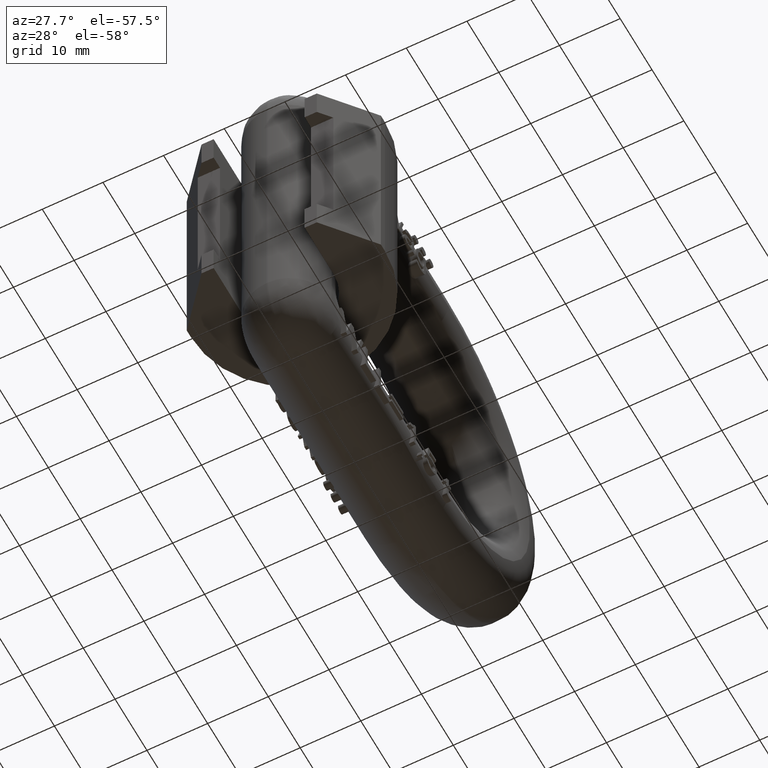
[diagram: clean part render]
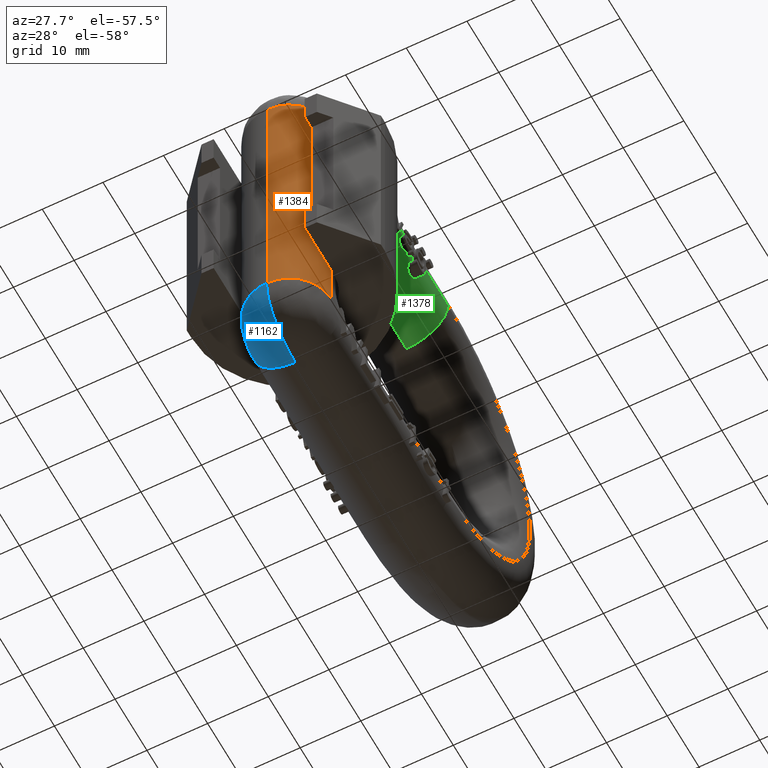
[diagram: same view with three faces highlighted in distinct colors, each labeled with its STEP entity id]
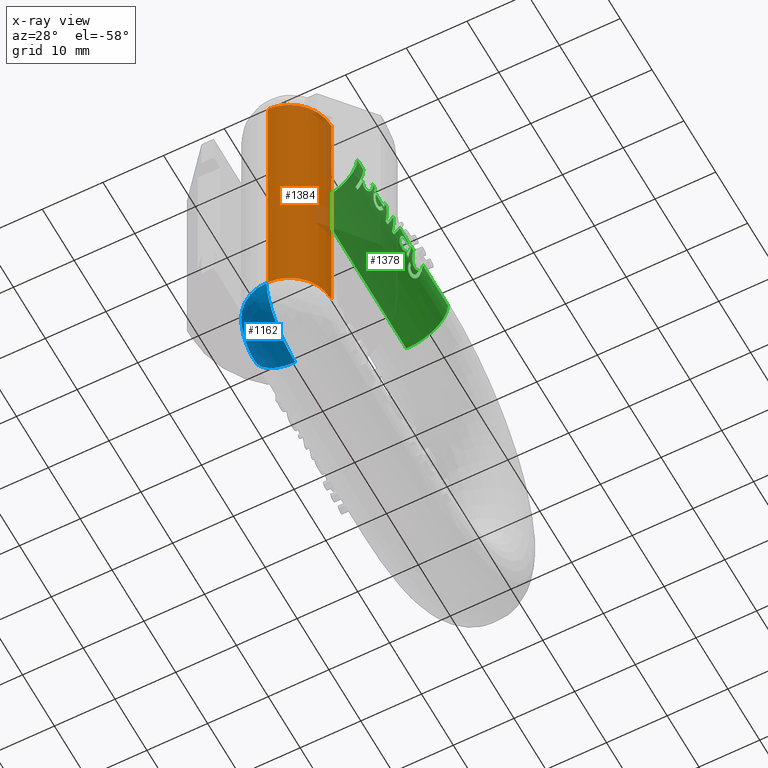
[diagram: x-ray of the same camera — body ghosted, the three highlighted faces saturated]
A machine part, auxiliary view with three faces highlighted in distinct colors.
The next image is the same camera in x-ray (body ghosted, the three faces saturated) — at least one of them is partly hidden behind the body in this view.
Their STEP definitions:

[orange] entity #1384 — the highlighted cylindrical surface (partial cylindrical patch) has radius 6.9 mm, axis along (-0, 0, 1).
#1100=CYLINDRICAL_SURFACE('',#9264,6.9);
#1384=ADVANCED_FACE('',(#2080),#1100,.T.);
#2080=FACE_OUTER_BOUND('',#2562,.T.);
#2562=EDGE_LOOP('',(#4511,#4512,#4513,#4514,#4515,#4516,#4517,#4518));
#2878=CIRCLE('',#9259,6.9);
#2881=CIRCLE('',#9263,6.9);
#4511=ORIENTED_EDGE('',*,*,#7261,.T.);
#4512=ORIENTED_EDGE('',*,*,#6449,.F.);
#4513=ORIENTED_EDGE('',*,*,#7264,.F.);
#4514=ORIENTED_EDGE('',*,*,#7085,.F.);
#4515=ORIENTED_EDGE('',*,*,#7265,.F.);
#4516=ORIENTED_EDGE('',*,*,#7266,.F.);
#4517=ORIENTED_EDGE('',*,*,#7267,.F.);
#4518=ORIENTED_EDGE('',*,*,#7256,.F.);
#5567=VERTEX_POINT('',#11285);
#5568=VERTEX_POINT('',#11287);
#5988=VERTEX_POINT('',#14901);
#5989=VERTEX_POINT('',#14903);
#6138=VERTEX_POINT('',#16093);
#6139=VERTEX_POINT('',#16094);
#6142=VERTEX_POINT('',#16125);
#6143=VERTEX_POINT('',#16127);
#6449=EDGE_CURVE('',#5567,#5568,#7741,.T.);
#7085=EDGE_CURVE('',#5988,#5989,#7987,.T.);
#7256=EDGE_CURVE('',#6138,#6139,#8031,.T.);
#7261=EDGE_CURVE('',#6138,#5568,#2878,.T.);
#7264=EDGE_CURVE('',#5989,#5567,#2881,.T.);
#7265=EDGE_CURVE('',#6142,#5988,#8033,.T.);
#7266=EDGE_CURVE('',#6143,#6142,#8034,.T.);
#7267=EDGE_CURVE('',#6139,#6143,#8035,.T.);
#7741=LINE('',#11286,#8279);
#7987=LINE('',#14902,#8603);
#8031=LINE('',#16092,#8647);
#8033=LINE('',#16124,#8649);
#8034=LINE('',#16126,#8650);
#8035=LINE('',#16128,#8651);
#8279=VECTOR('',#9544,1.);
#8603=VECTOR('',#10362,1.);
#8647=VECTOR('',#10532,1.);
#8649=VECTOR('',#10554,1.);
#8650=VECTOR('',#10555,1.);
#8651=VECTOR('',#10556,1.);
#9259=AXIS2_PLACEMENT_3D('',#16102,#10544,#10545);
#9263=AXIS2_PLACEMENT_3D('',#16123,#10552,#10553);
#9264=AXIS2_PLACEMENT_3D('',#16129,#10557,#10558);
#9544=DIRECTION('',(-2.34291072916505E-15,0.,1.));
#10362=DIRECTION('',(2.34291072916505E-15,0.,-1.));
#10532=DIRECTION('',(2.34291072916505E-15,0.,-1.));
#10544=DIRECTION('',(2.34291072916505E-15,0.,-1.));
#10545=DIRECTION('',(-1.,0.,-2.51409199416929E-15));
#10552=DIRECTION('',(2.34291072916505E-15,0.,-1.));
#10553=DIRECTION('',(-1.,0.,-2.51409199416929E-15));
#10554=DIRECTION('',(2.34291072916505E-15,0.,-1.));
#10555=DIRECTION('',(2.34291072916505E-15,0.,-1.));
#10556=DIRECTION('',(2.34291072916505E-15,0.,-1.));
#10557=DIRECTION('',(-2.34291072916505E-15,0.,1.));
#10558=DIRECTION('',(1.,0.,2.51409199416929E-15));
#11285=CARTESIAN_POINT('',(0.100000000000054,2.5,-23.5));
#11286=CARTESIAN_POINT('',(0.0999999999999443,2.5,23.5));
#11287=CARTESIAN_POINT('',(0.0999999999999443,2.5,23.5));
#14901=CARTESIAN_POINT('',(7.00000000000005,9.4,-19.7248595461287));
#14902=CARTESIAN_POINT('',(7.00000000000006,9.4,-23.5));
#14903=CARTESIAN_POINT('',(7.00000000000006,9.4,-23.5));
#16092=CARTESIAN_POINT('',(7.00000000000006,9.4,-23.5));
#16093=CARTESIAN_POINT('',(6.99999999999995,9.4,23.5));
#16094=CARTESIAN_POINT('',(6.99999999999995,9.4,19.7248595461288));
#16102=CARTESIAN_POINT('',(0.0999999999999443,9.4,23.5));
#16123=CARTESIAN_POINT('',(0.100000000000054,9.4,-23.5));
#16124=CARTESIAN_POINT('',(7.00000000000006,9.4,-23.5));
#16125=CARTESIAN_POINT('',(7.00000000000004,9.4,-17.5));
#16126=CARTESIAN_POINT('',(7.00000000000006,9.4,-23.5));
#16127=CARTESIAN_POINT('',(6.99999999999996,9.4,17.5000000000001));
#16128=CARTESIAN_POINT('',(7.00000000000006,9.4,-23.5));
#16129=CARTESIAN_POINT('',(0.100000000000054,9.4,-23.5));

[blue] entity #1162 — the highlighted face is a freeform B-spline surface patch.
#236=(
BOUNDED_SURFACE()
B_SPLINE_SURFACE(3,3,((#12602,#12603,#12604,#12605),(#12606,#12607,#12608,
#12609),(#12610,#12611,#12612,#12613),(#12614,#12615,#12616,#12617)),
 .UNSPECIFIED.,.F.,.F.,.F.)
B_SPLINE_SURFACE_WITH_KNOTS((4,4),(4,4),(0.,1.),(0.,1.),.UNSPECIFIED.)
GEOMETRIC_REPRESENTATION_ITEM()
RATIONAL_B_SPLINE_SURFACE(((1.,0.804737854124365,0.804737854124365,1.),
(0.804737854124365,0.647603013860688,0.647603013860688,0.804737854124365),
(0.804737854124365,0.647603013860688,0.647603013860688,0.804737854124365),
(1.,0.804737854124365,0.804737854124365,1.)))
REPRESENTATION_ITEM('')
SURFACE()
);
#1162=ADVANCED_FACE('',(#1868),#236,.T.);
#1868=FACE_OUTER_BOUND('',#2327,.T.);
#2327=EDGE_LOOP('',(#3280,#3281,#3282,#3283));
#2785=CIRCLE('',#8954,9.);
#2811=CIRCLE('',#9003,6.9);
#2817=CIRCLE('',#9028,2.1);
#2819=CIRCLE('',#9032,6.9);
#3280=ORIENTED_EDGE('',*,*,#6589,.T.);
#3281=ORIENTED_EDGE('',*,*,#6465,.F.);
#3282=ORIENTED_EDGE('',*,*,#6658,.F.);
#3283=ORIENTED_EDGE('',*,*,#6655,.F.);
#5566=VERTEX_POINT('',#11284);
#5577=VERTEX_POINT('',#11313);
#5690=VERTEX_POINT('',#11998);
#5742=VERTEX_POINT('',#12592);
#6465=EDGE_CURVE('',#5566,#5577,#2785,.T.);
#6589=EDGE_CURVE('',#5690,#5577,#2811,.T.);
#6655=EDGE_CURVE('',#5690,#5742,#2817,.T.);
#6658=EDGE_CURVE('',#5742,#5566,#2819,.T.);
#8954=AXIS2_PLACEMENT_3D('',#11317,#9575,#9576);
#9003=AXIS2_PLACEMENT_3D('',#11997,#9710,#9711);
#9028=AXIS2_PLACEMENT_3D('',#12595,#9771,#9772);
#9032=AXIS2_PLACEMENT_3D('',#12601,#9780,#9781);
#9575=DIRECTION('',(1.,0.,0.));
#9576=DIRECTION('',(0.,0.,1.));
#9710=DIRECTION('',(0.,-1.,5.02818398833857E-16));
#9711=DIRECTION('',(0.,-5.02818398833857E-16,-1.));
#9771=DIRECTION('',(-1.,0.,0.));
#9772=DIRECTION('',(0.,0.,1.));
#9780=DIRECTION('',(0.,0.,1.));
#9781=DIRECTION('',(1.,0.,0.));
#11284=CARTESIAN_POINT('',(-0.0999999999999994,2.5,-23.5));
#11313=CARTESIAN_POINT('',(-0.0999999999999994,11.5,-32.5));
#11317=CARTESIAN_POINT('',(-0.0999999999999994,11.5,-23.5));
#11997=CARTESIAN_POINT('',(-0.0999999999999994,11.5,-25.6));
#11998=CARTESIAN_POINT('',(-7.,11.5,-25.6));
#12592=CARTESIAN_POINT('',(-7.,9.4,-23.5));
#12595=CARTESIAN_POINT('',(-7.,11.5,-23.5));
#12601=CARTESIAN_POINT('',(-0.0999999999999994,9.4,-23.5));
#12602=CARTESIAN_POINT('',(-7.,11.5,-25.6));
#12603=CARTESIAN_POINT('',(-7.,10.2698484809835,-25.6));
#12604=CARTESIAN_POINT('',(-7.,9.4,-24.7301515190165));
#12605=CARTESIAN_POINT('',(-7.,9.4,-23.5));
#12606=CARTESIAN_POINT('',(-7.,11.5,-29.6419264196256));
#12607=CARTESIAN_POINT('',(-7.,7.90214280248093,-29.6419264196256));
#12608=CARTESIAN_POINT('',(-7.,5.35807358037436,-27.0978571975191));
#12609=CARTESIAN_POINT('',(-7.,5.35807358037436,-23.5));
#12610=CARTESIAN_POINT('',(-4.14192641962564,11.5,-32.5));
#12611=CARTESIAN_POINT('',(-4.14192641962564,6.22792206135786,-32.5));
#12612=CARTESIAN_POINT('',(-4.14192641962564,2.5,-28.7720779386421));
#12613=CARTESIAN_POINT('',(-4.14192641962564,2.5,-23.5));
#12614=CARTESIAN_POINT('',(-0.0999999999999985,11.5,-32.5));
#12615=CARTESIAN_POINT('',(-0.0999999999999985,6.22792206135786,-32.5));
#12616=CARTESIAN_POINT('',(-0.0999999999999985,2.5,-28.7720779386421));
#12617=CARTESIAN_POINT('',(-0.0999999999999985,2.5,-23.5));

[green] entity #1378 — the highlighted cylindrical surface (partial cylindrical patch) has radius 6.9 mm, axis along (0, -1, 0).
#299=ELLIPSE('',#9241,48.0158456161202,6.9);
#300=ELLIPSE('',#9242,51.9098161027808,6.9);
#301=ELLIPSE('',#9243,7.24041539934658,6.9);
#302=ELLIPSE('',#9244,7.14703583906104,6.9);
#303=ELLIPSE('',#9245,7.083587877245,6.9);
#304=ELLIPSE('',#9246,7.14294426054788,6.9);
#305=ELLIPSE('',#9247,7.22701863492407,6.9);
#306=ELLIPSE('',#9248,57.5025199382336,6.9);
#730=B_SPLINE_CURVE_WITH_KNOTS('',3,(#15695,#15696,#15697,#15698,#15699,
#15700,#15701,#15702),.UNSPECIFIED.,.F.,.F.,(4,2,2,4),(0.,0.25,0.5,1.),
 .UNSPECIFIED.);
#731=B_SPLINE_CURVE_WITH_KNOTS('',3,(#15704,#15705,#15706,#15707,#15708,
#15709,#15710,#15711,#15712,#15713,#15714,#15715,#15716),.UNSPECIFIED.,
 .F.,.F.,(4,3,3,3,4),(0.,0.240774955562717,0.479091554389667,0.754813420386059,
1.),.UNSPECIFIED.);
#732=B_SPLINE_CURVE_WITH_KNOTS('',3,(#15718,#15719,#15720,#15721,#15722,
#15723,#15724,#15725,#15726,#15727),.UNSPECIFIED.,.F.,.F.,(4,3,3,4),(0.,
0.414423396238002,0.649284728910077,1.),.UNSPECIFIED.);
#733=B_SPLINE_CURVE_WITH_KNOTS('',3,(#15731,#15732,#15733,#15734,#15735,
#15736,#15737,#15738,#15739,#15740),.UNSPECIFIED.,.F.,.F.,(4,3,3,4),(0.,
0.265655216412921,0.672024980526456,1.),.UNSPECIFIED.);
#734=B_SPLINE_CURVE_WITH_KNOTS('',3,(#15742,#15743,#15744,#15745,#15746,
#15747,#15748,#15749,#15750,#15751,#15752,#15753,#15754,#15755,#15756,#15757,
#15758,#15759,#15760),.UNSPECIFIED.,.F.,.F.,(4,3,3,3,3,3,4),(0.,0.204909507472804,
0.339278695809496,0.474389882199316,0.67848433073375,0.856270146803093,
1.),.UNSPECIFIED.);
#735=B_SPLINE_CURVE_WITH_KNOTS('',3,(#15762,#15763,#15764,#15765,#15766,
#15767,#15768,#15769,#15770,#15771),.UNSPECIFIED.,.F.,.F.,(4,3,3,4),(0.,
0.350423326157689,0.673957232872881,1.),.UNSPECIFIED.);
#736=B_SPLINE_CURVE_WITH_KNOTS('',3,(#15773,#15774,#15775,#15776,#15777,
#15778,#15779,#15780,#15781,#15782,#15783,#15784,#15785,#15786,#15787,#15788,
#15789,#15790,#15791,#15792,#15793,#15794,#15795,#15796,#15797,#15798,#15799,
#15800),.UNSPECIFIED.,.F.,.F.,(4,3,3,3,3,3,3,3,3,4),(0.,0.161555110936716,
0.326591081419419,0.4900290578059,0.585040143930218,0.680259675914433,0.774914289945667,
0.860988711071179,0.946998001945225,1.),.UNSPECIFIED.);
#737=B_SPLINE_CURVE_WITH_KNOTS('',3,(#15801,#15802,#15803,#15804,#15805,
#15806,#15807,#15808,#15809,#15810),.UNSPECIFIED.,.F.,.F.,(4,3,3,4),(0.,
0.380802208752944,0.689054274983316,1.),.UNSPECIFIED.);
#738=B_SPLINE_CURVE_WITH_KNOTS('',3,(#15812,#15813,#15814,#15815,#15816,
#15817,#15818,#15819,#15820,#15821),.UNSPECIFIED.,.F.,.F.,(4,3,3,4),(0.,
0.493933314909422,0.746039258606024,1.),.UNSPECIFIED.);
#739=B_SPLINE_CURVE_WITH_KNOTS('',3,(#15825,#15826,#15827,#15828,#15829,
#15830,#15831,#15832,#15833,#15834),.UNSPECIFIED.,.F.,.F.,(4,3,3,4),(0.,
0.493370917964008,0.745461342687032,1.),.UNSPECIFIED.);
#740=B_SPLINE_CURVE_WITH_KNOTS('',3,(#15836,#15837,#15838,#15839,#15840,
#15841,#15842,#15843,#15844,#15845),.UNSPECIFIED.,.F.,.F.,(4,3,3,4),(0.,
0.282583026587274,0.564671553526576,1.),.UNSPECIFIED.);
#741=B_SPLINE_CURVE_WITH_KNOTS('',3,(#15847,#15848,#15849,#15850,#15851,
#15852,#15853,#15854,#15855,#15856,#15857,#15858,#15859,#15860,#15861,#15862,
#15863,#15864,#15865,#15866,#15867,#15868,#15869,#15870,#15871),
 .UNSPECIFIED.,.F.,.F.,(4,3,3,3,3,3,3,3,4),(0.,0.109334912724332,0.217830452497315,
0.344744115261238,0.457062185518118,0.572257754798187,0.721654213663782,
0.937888591037231,1.),.UNSPECIFIED.);
#742=B_SPLINE_CURVE_WITH_KNOTS('',3,(#15873,#15874,#15875,#15876,#15877,
#15878,#15879,#15880,#15881,#15882),.UNSPECIFIED.,.F.,.F.,(4,3,3,4),(0.,
0.259528139793296,0.519063539176799,1.),.UNSPECIFIED.);
#743=B_SPLINE_CURVE_WITH_KNOTS('',3,(#15884,#15885,#15886,#15887,#15888,
#15889,#15890,#15891,#15892,#15893),.UNSPECIFIED.,.F.,.F.,(4,3,3,4),(0.,
0.26165614086771,0.523384175272638,1.),.UNSPECIFIED.);
#744=B_SPLINE_CURVE_WITH_KNOTS('',3,(#15895,#15896,#15897,#15898,#15899,
#15900,#15901,#15902,#15903,#15904),.UNSPECIFIED.,.F.,.F.,(4,3,3,4),(0.,
0.331270383050767,0.665203033046446,1.),.UNSPECIFIED.);
#745=B_SPLINE_CURVE_WITH_KNOTS('',3,(#15906,#15907,#15908,#15909,#15910,
#15911,#15912,#15913,#15914,#15915),.UNSPECIFIED.,.F.,.F.,(4,3,3,4),(0.,
0.336070513602499,0.667700301170696,1.),.UNSPECIFIED.);
#746=B_SPLINE_CURVE_WITH_KNOTS('',3,(#15917,#15918,#15919,#15920,#15921,
#15922,#15923),.UNSPECIFIED.,.F.,.F.,(4,3,4),(0.,0.498341515942701,1.),
 .UNSPECIFIED.);
#747=B_SPLINE_CURVE_WITH_KNOTS('',3,(#15924,#15925,#15926,#15927),
 .UNSPECIFIED.,.F.,.F.,(4,4),(0.,1.),.UNSPECIFIED.);
#748=B_SPLINE_CURVE_WITH_KNOTS('',3,(#15931,#15932,#15933,#15934),
 .UNSPECIFIED.,.F.,.F.,(4,4),(0.,1.),.UNSPECIFIED.);
#749=B_SPLINE_CURVE_WITH_KNOTS('',3,(#15950,#15951,#15952,#15953,#15954,
#15955,#15956),.UNSPECIFIED.,.F.,.F.,(4,3,4),(0.,0.814441252914079,1.),
 .UNSPECIFIED.);
#750=B_SPLINE_CURVE_WITH_KNOTS('',3,(#15960,#15961,#15962,#15963,#15964,
#15965,#15966,#15967,#15968,#15969),.UNSPECIFIED.,.F.,.F.,(4,3,3,4),(0.,
0.295914027655166,0.754996035532998,1.),.UNSPECIFIED.);
#751=B_SPLINE_CURVE_WITH_KNOTS('',3,(#15971,#15972,#15973,#15974,#15975,
#15976,#15977,#15978,#15979,#15980,#15981,#15982,#15983,#15984,#15985,#15986),
 .UNSPECIFIED.,.F.,.F.,(4,3,3,3,3,4),(0.,0.208494010149192,0.415658259112178,
0.651012517605988,0.899385049135537,1.),.UNSPECIFIED.);
#752=B_SPLINE_CURVE_WITH_KNOTS('',3,(#15988,#15989,#15990,#15991,#15992,
#15993,#15994,#15995,#15996,#15997),.UNSPECIFIED.,.F.,.F.,(4,3,3,4),(0.,
0.290391091340212,0.581357320391747,1.),.UNSPECIFIED.);
#753=B_SPLINE_CURVE_WITH_KNOTS('',3,(#16001,#16002,#16003,#16004,#16005,
#16006,#16007,#16008,#16009,#16010),.UNSPECIFIED.,.F.,.F.,(4,3,3,4),(0.,
0.265914615217037,0.758350119690938,1.),.UNSPECIFIED.);
#754=B_SPLINE_CURVE_WITH_KNOTS('',3,(#16012,#16013,#16014,#16015,#16016,
#16017,#16018,#16019,#16020,#16021,#16022,#16023,#16024,#16025,#16026,#16027),
 .UNSPECIFIED.,.F.,.F.,(4,3,3,3,3,4),(0.,0.207142719932074,0.414106459647106,
0.701317802841796,0.902711883125082,1.),.UNSPECIFIED.);
#755=B_SPLINE_CURVE_WITH_KNOTS('',3,(#16029,#16030,#16031,#16032,#16033,
#16034,#16035,#16036,#16037,#16038,#16039,#16040,#16041),.UNSPECIFIED.,
 .F.,.F.,(4,3,3,3,4),(0.,0.327583363499489,0.659416952884934,0.903455095412193,
1.),.UNSPECIFIED.);
#756=B_SPLINE_CURVE_WITH_KNOTS('',3,(#16042,#16043,#16044,#16045,#16046,
#16047,#16048,#16049,#16050,#16051,#16052,#16053,#16054,#16055,#16056,#16057),
 .UNSPECIFIED.,.F.,.F.,(4,3,3,3,3,4),(0.,0.19221115347812,0.3829273968302,
0.666963421150527,0.956716028113853,1.),.UNSPECIFIED.);
#757=B_SPLINE_CURVE_WITH_KNOTS('',3,(#16059,#16060,#16061,#16062,#16063,
#16064,#16065,#16066,#16067,#16068,#16069,#16070,#16071),.UNSPECIFIED.,
 .F.,.F.,(4,3,3,3,4),(0.,0.268648668352517,0.534872777494387,0.839503930025229,
1.),.UNSPECIFIED.);
#758=B_SPLINE_CURVE_WITH_KNOTS('',3,(#16073,#16074,#16075,#16076,#16077,
#16078,#16079,#16080,#16081,#16082),.UNSPECIFIED.,.F.,.F.,(4,3,3,4),(0.,
0.258655182620961,0.517282552273824,1.),.UNSPECIFIED.);
#1098=CYLINDRICAL_SURFACE('',#9250,6.9);
#1378=ADVANCED_FACE('',(#2074),#1098,.T.);
#2074=FACE_OUTER_BOUND('',#2556,.T.);
#2556=EDGE_LOOP('',(#4437,#4438,#4439,#4440,#4441,#4442,#4443,#4444,#4445,
#4446,#4447,#4448,#4449,#4450,#4451,#4452,#4453,#4454,#4455,#4456,#4457,
#4458,#4459,#4460,#4461,#4462,#4463,#4464,#4465,#4466,#4467,#4468,#4469,
#4470,#4471,#4472,#4473,#4474,#4475,#4476,#4477,#4478,#4479,#4480,#4481,
#4482,#4483,#4484,#4485,#4486,#4487,#4488,#4489,#4490,#4491));
#2871=CIRCLE('',#9238,6.9);
#2872=CIRCLE('',#9239,6.9);
#2873=CIRCLE('',#9240,6.9);
#2874=CIRCLE('',#9249,6.9);
#4437=ORIENTED_EDGE('',*,*,#7207,.F.);
#4438=ORIENTED_EDGE('',*,*,#7195,.F.);
#4439=ORIENTED_EDGE('',*,*,#7208,.F.);
#4440=ORIENTED_EDGE('',*,*,#6445,.F.);
#4441=ORIENTED_EDGE('',*,*,#7209,.T.);
#4442=ORIENTED_EDGE('',*,*,#7190,.F.);
#4443=ORIENTED_EDGE('',*,*,#7210,.F.);
#4444=ORIENTED_EDGE('',*,*,#7211,.F.);
#4445=ORIENTED_EDGE('',*,*,#7212,.F.);
#4446=ORIENTED_EDGE('',*,*,#7213,.F.);
#4447=ORIENTED_EDGE('',*,*,#7214,.F.);
#4448=ORIENTED_EDGE('',*,*,#7215,.F.);
#4449=ORIENTED_EDGE('',*,*,#7216,.F.);
#4450=ORIENTED_EDGE('',*,*,#7217,.F.);
#4451=ORIENTED_EDGE('',*,*,#7184,.F.);
#4452=ORIENTED_EDGE('',*,*,#7218,.F.);
#4453=ORIENTED_EDGE('',*,*,#7219,.F.);
#4454=ORIENTED_EDGE('',*,*,#7220,.F.);
#4455=ORIENTED_EDGE('',*,*,#7221,.F.);
#4456=ORIENTED_EDGE('',*,*,#7222,.F.);
#4457=ORIENTED_EDGE('',*,*,#7223,.F.);
#4458=ORIENTED_EDGE('',*,*,#7224,.F.);
#4459=ORIENTED_EDGE('',*,*,#7225,.F.);
#4460=ORIENTED_EDGE('',*,*,#7226,.F.);
#4461=ORIENTED_EDGE('',*,*,#7227,.F.);
#4462=ORIENTED_EDGE('',*,*,#7228,.F.);
#4463=ORIENTED_EDGE('',*,*,#7206,.F.);
#4464=ORIENTED_EDGE('',*,*,#7229,.F.);
#4465=ORIENTED_EDGE('',*,*,#7230,.F.);
#4466=ORIENTED_EDGE('',*,*,#7231,.F.);
#4467=ORIENTED_EDGE('',*,*,#7177,.F.);
#4468=ORIENTED_EDGE('',*,*,#7232,.F.);
#4469=ORIENTED_EDGE('',*,*,#7233,.F.);
#4470=ORIENTED_EDGE('',*,*,#7234,.F.);
#4471=ORIENTED_EDGE('',*,*,#7235,.F.);
#4472=ORIENTED_EDGE('',*,*,#7236,.F.);
#4473=ORIENTED_EDGE('',*,*,#7237,.F.);
#4474=ORIENTED_EDGE('',*,*,#7238,.F.);
#4475=ORIENTED_EDGE('',*,*,#7239,.F.);
#4476=ORIENTED_EDGE('',*,*,#7165,.F.);
#4477=ORIENTED_EDGE('',*,*,#7240,.F.);
#4478=ORIENTED_EDGE('',*,*,#7241,.F.);
#4479=ORIENTED_EDGE('',*,*,#7242,.F.);
#4480=ORIENTED_EDGE('',*,*,#7243,.F.);
#4481=ORIENTED_EDGE('',*,*,#7244,.F.);
#4482=ORIENTED_EDGE('',*,*,#7245,.F.);
#4483=ORIENTED_EDGE('',*,*,#7246,.F.);
#4484=ORIENTED_EDGE('',*,*,#7247,.F.);
#4485=ORIENTED_EDGE('',*,*,#7248,.F.);
#4486=ORIENTED_EDGE('',*,*,#7163,.F.);
#4487=ORIENTED_EDGE('',*,*,#7249,.F.);
#4488=ORIENTED_EDGE('',*,*,#7250,.F.);
#4489=ORIENTED_EDGE('',*,*,#7251,.F.);
#4490=ORIENTED_EDGE('',*,*,#7252,.F.);
#4491=ORIENTED_EDGE('',*,*,#7253,.F.);
#5562=VERTEX_POINT('',#11272);
#5564=VERTEX_POINT('',#11278);
#6052=VERTEX_POINT('',#15301);
#6057=VERTEX_POINT('',#15338);
#6058=VERTEX_POINT('',#15340);
#6059=VERTEX_POINT('',#15366);
#6060=VERTEX_POINT('',#15368);
#6071=VERTEX_POINT('',#15396);
#6072=VERTEX_POINT('',#15398);
#6078=VERTEX_POINT('',#15458);
#6079=VERTEX_POINT('',#15460);
#6084=VERTEX_POINT('',#15494);
#6085=VERTEX_POINT('',#15496);
#6088=VERTEX_POINT('',#15503);
#6096=VERTEX_POINT('',#15668);
#6097=VERTEX_POINT('',#15688);
#6098=VERTEX_POINT('',#15692);
#6099=VERTEX_POINT('',#15703);
#6100=VERTEX_POINT('',#15717);
#6101=VERTEX_POINT('',#15728);
#6102=VERTEX_POINT('',#15730);
#6103=VERTEX_POINT('',#15741);
#6104=VERTEX_POINT('',#15761);
#6105=VERTEX_POINT('',#15772);
#6106=VERTEX_POINT('',#15811);
#6107=VERTEX_POINT('',#15822);
#6108=VERTEX_POINT('',#15824);
#6109=VERTEX_POINT('',#15835);
#6110=VERTEX_POINT('',#15846);
#6111=VERTEX_POINT('',#15872);
#6112=VERTEX_POINT('',#15883);
#6113=VERTEX_POINT('',#15894);
#6114=VERTEX_POINT('',#15905);
#6115=VERTEX_POINT('',#15916);
#6116=VERTEX_POINT('',#15928);
#6117=VERTEX_POINT('',#15930);
#6118=VERTEX_POINT('',#15936);
#6119=VERTEX_POINT('',#15938);
#6120=VERTEX_POINT('',#15940);
#6121=VERTEX_POINT('',#15942);
#6122=VERTEX_POINT('',#15944);
#6123=VERTEX_POINT('',#15946);
#6124=VERTEX_POINT('',#15948);
#6125=VERTEX_POINT('',#15957);
#6126=VERTEX_POINT('',#15959);
#6127=VERTEX_POINT('',#15970);
#6128=VERTEX_POINT('',#15987);
#6129=VERTEX_POINT('',#15998);
#6130=VERTEX_POINT('',#16000);
#6131=VERTEX_POINT('',#16011);
#6132=VERTEX_POINT('',#16028);
#6133=VERTEX_POINT('',#16058);
#6134=VERTEX_POINT('',#16072);
#6135=VERTEX_POINT('',#16083);
#6136=VERTEX_POINT('',#16085);
#6445=EDGE_CURVE('',#5562,#5564,#7737,.T.);
#7163=EDGE_CURVE('',#6057,#6058,#8010,.T.);
#7165=EDGE_CURVE('',#6059,#6060,#8011,.T.);
#7177=EDGE_CURVE('',#6071,#6072,#8017,.T.);
#7184=EDGE_CURVE('',#6078,#6079,#8018,.T.);
#7190=EDGE_CURVE('',#6084,#6085,#8020,.T.);
#7195=EDGE_CURVE('',#6088,#6052,#8023,.T.);
#7206=EDGE_CURVE('',#6097,#6096,#8024,.T.);
#7207=EDGE_CURVE('',#6052,#6098,#2871,.T.);
#7208=EDGE_CURVE('',#5564,#6088,#2872,.T.);
#7209=EDGE_CURVE('',#5562,#6085,#2873,.T.);
#7210=EDGE_CURVE('',#6099,#6084,#730,.T.);
#7211=EDGE_CURVE('',#6100,#6099,#731,.T.);
#7212=EDGE_CURVE('',#6101,#6100,#732,.T.);
#7213=EDGE_CURVE('',#6102,#6101,#299,.T.);
#7214=EDGE_CURVE('',#6103,#6102,#733,.T.);
#7215=EDGE_CURVE('',#6104,#6103,#734,.T.);
#7216=EDGE_CURVE('',#6105,#6104,#735,.T.);
#7217=EDGE_CURVE('',#6079,#6105,#736,.T.);
#7218=EDGE_CURVE('',#6106,#6078,#737,.T.);
#7219=EDGE_CURVE('',#6107,#6106,#738,.T.);
#7220=EDGE_CURVE('',#6108,#6107,#8025,.T.);
#7221=EDGE_CURVE('',#6109,#6108,#739,.T.);
#7222=EDGE_CURVE('',#6110,#6109,#740,.T.);
#7223=EDGE_CURVE('',#6111,#6110,#741,.T.);
#7224=EDGE_CURVE('',#6112,#6111,#742,.T.);
#7225=EDGE_CURVE('',#6113,#6112,#743,.T.);
#7226=EDGE_CURVE('',#6114,#6113,#744,.T.);
#7227=EDGE_CURVE('',#6115,#6114,#745,.T.);
#7228=EDGE_CURVE('',#6096,#6115,#746,.T.);
#7229=EDGE_CURVE('',#6116,#6097,#747,.T.);
#7230=EDGE_CURVE('',#6117,#6116,#300,.T.);
#7231=EDGE_CURVE('',#6072,#6117,#748,.T.);
#7232=EDGE_CURVE('',#6118,#6071,#301,.T.);
#7233=EDGE_CURVE('',#6119,#6118,#8026,.T.);
#7234=EDGE_CURVE('',#6120,#6119,#302,.T.);
#7235=EDGE_CURVE('',#6121,#6120,#303,.T.);
#7236=EDGE_CURVE('',#6122,#6121,#8027,.T.);
#7237=EDGE_CURVE('',#6123,#6122,#304,.T.);
#7238=EDGE_CURVE('',#6124,#6123,#8028,.T.);
#7239=EDGE_CURVE('',#6060,#6124,#305,.T.);
#7240=EDGE_CURVE('',#6125,#6059,#749,.T.);
#7241=EDGE_CURVE('',#6126,#6125,#8029,.T.);
#7242=EDGE_CURVE('',#6127,#6126,#750,.T.);
#7243=EDGE_CURVE('',#6128,#6127,#751,.T.);
#7244=EDGE_CURVE('',#6129,#6128,#752,.T.);
#7245=EDGE_CURVE('',#6130,#6129,#306,.T.);
#7246=EDGE_CURVE('',#6131,#6130,#753,.T.);
#7247=EDGE_CURVE('',#6132,#6131,#754,.T.);
#7248=EDGE_CURVE('',#6058,#6132,#755,.T.);
#7249=EDGE_CURVE('',#6133,#6057,#756,.T.);
#7250=EDGE_CURVE('',#6134,#6133,#757,.T.);
#7251=EDGE_CURVE('',#6135,#6134,#758,.T.);
#7252=EDGE_CURVE('',#6136,#6135,#2874,.T.);
#7253=EDGE_CURVE('',#6098,#6136,#8030,.T.);
#7737=LINE('',#11277,#8275);
#8010=LINE('',#15339,#8626);
#8011=LINE('',#15367,#8627);
#8017=LINE('',#15397,#8633);
#8018=LINE('',#15459,#8634);
#8020=LINE('',#15495,#8636);
#8023=LINE('',#15504,#8639);
#8024=LINE('',#15689,#8640);
#8025=LINE('',#15823,#8641);
#8026=LINE('',#15937,#8642);
#8027=LINE('',#15943,#8643);
#8028=LINE('',#15947,#8644);
#8029=LINE('',#15958,#8645);
#8030=LINE('',#16086,#8646);
#8275=VECTOR('',#9538,1.);
#8626=VECTOR('',#10451,1.);
#8627=VECTOR('',#10452,1.);
#8633=VECTOR('',#10466,1.);
#8634=VECTOR('',#10467,1.);
#8636=VECTOR('',#10471,1.);
#8639=VECTOR('',#10478,1.);
#8640=VECTOR('',#10491,1.);
#8641=VECTOR('',#10502,1.);
#8642=VECTOR('',#10507,1.);
#8643=VECTOR('',#10512,1.);
#8644=VECTOR('',#10515,1.);
#8645=VECTOR('',#10518,1.);
#8646=VECTOR('',#10523,1.);
#9238=AXIS2_PLACEMENT_3D('',#15691,#10494,#10495);
#9239=AXIS2_PLACEMENT_3D('',#15693,#10496,#10497);
#9240=AXIS2_PLACEMENT_3D('',#15694,#10498,#10499);
#9241=AXIS2_PLACEMENT_3D('',#15729,#10500,#10501);
#9242=AXIS2_PLACEMENT_3D('',#15929,#10503,#10504);
#9243=AXIS2_PLACEMENT_3D('',#15935,#10505,#10506);
#9244=AXIS2_PLACEMENT_3D('',#15939,#10508,#10509);
#9245=AXIS2_PLACEMENT_3D('',#15941,#10510,#10511);
#9246=AXIS2_PLACEMENT_3D('',#15945,#10513,#10514);
#9247=AXIS2_PLACEMENT_3D('',#15949,#10516,#10517);
#9248=AXIS2_PLACEMENT_3D('',#15999,#10519,#10520);
#9249=AXIS2_PLACEMENT_3D('',#16084,#10521,#10522);
#9250=AXIS2_PLACEMENT_3D('',#16087,#10524,#10525);
#9538=DIRECTION('',(0.,-1.,0.));
#10451=DIRECTION('',(0.,1.,0.));
#10452=DIRECTION('',(0.,1.,0.));
#10466=DIRECTION('',(0.,1.,0.));
#10467=DIRECTION('',(0.,1.,0.));
#10471=DIRECTION('',(0.,1.,0.));
#10478=DIRECTION('',(0.,1.,0.));
#10491=DIRECTION('',(0.,1.,0.));
#10494=DIRECTION('',(0.,1.,0.));
#10495=DIRECTION('',(-2.34321230394059E-15,0.,1.));
#10496=DIRECTION('',(2.51647163691136E-15,-1.,5.89586839775915E-30));
#10497=DIRECTION('',(-1.,-2.51409199416929E-15,-2.51409199416929E-15));
#10498=DIRECTION('',(0.,-1.,0.));
#10499=DIRECTION('',(-2.34321230394059E-15,0.,1.));
#10500=DIRECTION('',(2.31859348140978E-15,-0.143702561341198,-0.989620924326067));
#10501=DIRECTION('',(-3.36682272774791E-16,-0.989620924326067,0.143702561341198));
#10502=DIRECTION('',(0.,1.,0.));
#10503=DIRECTION('',(-2.32212065140543E-15,0.132922836527452,0.991126389281153));
#10504=DIRECTION('',(-3.11426339851218E-16,-0.991126389281153,0.132922836527452));
#10505=DIRECTION('',(-7.09950289647319E-16,-0.952983996004248,0.303020631904454));
#10506=DIRECTION('',(2.23275642896094E-15,-0.303020631904454,-0.952983996004248));
#10507=DIRECTION('',(0.,1.,0.));
#10508=DIRECTION('',(-6.10663705076032E-16,0.96543520354118,0.260643180926341));
#10509=DIRECTION('',(-2.26192849669027E-15,-0.260643180926341,0.96543520354118));
#10510=DIRECTION('',(-5.29948617235897E-16,0.974082642803832,0.226192407008506));
#10511=DIRECTION('',(-2.28218867491854E-15,-0.226192407008506,0.974082642803832));
#10512=DIRECTION('',(0.,1.,0.));
#10513=DIRECTION('',(-6.05844106883227E-16,-0.9659882183472,0.25858608240662));
#10514=DIRECTION('',(2.26322416101268E-15,-0.25858608240662,-0.9659882183472));
#10515=DIRECTION('',(0.,1.,0.));
#10516=DIRECTION('',(-6.96799894628081E-16,0.954750547709429,0.297407786798775));
#10517=DIRECTION('',(-2.23689530190463E-15,-0.297407786798775,0.954750547709429));
#10518=DIRECTION('',(0.,1.,0.));
#10519=DIRECTION('',(2.32598209167849E-15,-0.119994741228935,-0.99277452731091));
#10520=DIRECTION('',(-2.81136966668655E-16,-0.99277452731091,0.119994741228935));
#10521=DIRECTION('',(0.,-1.,0.));
#10522=DIRECTION('',(2.34321230394059E-15,0.,-1.));
#10523=DIRECTION('',(0.,1.,0.));
#10524=DIRECTION('',(0.,-1.,0.));
#10525=DIRECTION('',(-2.34321230394059E-15,0.,1.));
#11272=CARTESIAN_POINT('',(0.10652482415432,46.,19.));
#11277=CARTESIAN_POINT('',(0.106524824154321,17.5,19.));
#11278=CARTESIAN_POINT('',(0.10652482415432,17.5,19.));
#15301=CARTESIAN_POINT('',(6.99999999999994,19.4166666666667,25.6));
#15338=CARTESIAN_POINT('',(6.99999999999994,22.2948708375314,25.6));
#15339=CARTESIAN_POINT('',(6.99999999999994,11.5,25.6));
#15340=CARTESIAN_POINT('',(6.99999999999994,23.0281956695124,25.6));
#15366=CARTESIAN_POINT('',(6.99999999999994,25.9759394405865,25.6));
#15367=CARTESIAN_POINT('',(6.99999999999994,11.5,25.6));
#15368=CARTESIAN_POINT('',(6.99999999999994,26.6722112079631,25.6));
#15396=CARTESIAN_POINT('',(6.99999999999994,30.79493666081,25.6));
#15397=CARTESIAN_POINT('',(6.99999999999994,11.5,25.6));
#15398=CARTESIAN_POINT('',(6.99999999999994,31.4923752585942,25.6));
#15458=CARTESIAN_POINT('',(6.99999999999994,34.3670618294338,25.6));
#15459=CARTESIAN_POINT('',(6.99999999999994,11.5,25.6));
#15460=CARTESIAN_POINT('',(6.99999999999994,35.1648900030806,25.6));
#15494=CARTESIAN_POINT('',(6.99999999999994,38.0833333333333,25.6));
#15495=CARTESIAN_POINT('',(6.99999999999994,11.5,25.6));
#15496=CARTESIAN_POINT('',(6.99999999999994,46.,25.6));
#15503=CARTESIAN_POINT('',(6.99999999999994,17.5,25.6));
#15504=CARTESIAN_POINT('',(6.99999999999994,11.5,25.6));
#15668=CARTESIAN_POINT('',(6.99999999999994,33.7782066267164,25.6));
#15688=CARTESIAN_POINT('',(6.99999999999994,32.0857585780771,25.6));
#15689=CARTESIAN_POINT('',(6.99999999999994,11.5,25.6));
#15691=CARTESIAN_POINT('',(0.106524824154305,19.4166666666667,25.9));
#15692=CARTESIAN_POINT('',(5.70831934502663,19.4166666666667,21.8713652255479));
#15693=CARTESIAN_POINT('',(0.106524824154305,17.5,25.9));
#15694=CARTESIAN_POINT('',(0.106524824154304,46.,25.9));
#15695=CARTESIAN_POINT('',(5.78898811554471,37.4018730613219,21.9859725419971));
#15696=CARTESIAN_POINT('',(5.89576882788171,37.6905672353468,22.1409989143448));
#15697=CARTESIAN_POINT('',(6.05521851230444,37.9005626327654,22.3881444943984));
#15698=CARTESIAN_POINT('',(6.36473360811708,38.0712517080074,22.9751224805143));
#15699=CARTESIAN_POINT('',(6.50380267549948,38.0827975606164,23.2922845571232));
#15700=CARTESIAN_POINT('',(6.84154963268321,38.0843744578818,24.2535444792467));
#15701=CARTESIAN_POINT('',(6.97022413933464,38.0833333333333,24.9158028122143));
#15702=CARTESIAN_POINT('',(6.99999999999994,38.0833333333333,25.6));
#15703=CARTESIAN_POINT('',(5.78898811554471,37.4018730613219,21.9859725419971));
#15704=CARTESIAN_POINT('',(5.84405754846656,35.5336272532049,22.067152724482));
#15705=CARTESIAN_POINT('',(5.78649023632538,35.6536147328157,21.9809780575782));
#15706=CARTESIAN_POINT('',(5.73918513736233,35.7956309103889,21.9142724368258));
#15707=CARTESIAN_POINT('',(5.70781155911639,35.9447974350211,21.8706592458893));
#15708=CARTESIAN_POINT('',(5.67661238486084,36.0931347511733,21.8272884982748));
#15709=CARTESIAN_POINT('',(5.65982439637892,36.2516591453552,21.8047658342711));
#15710=CARTESIAN_POINT('',(5.65453956934788,36.4090737525636,21.7976186931107));
#15711=CARTESIAN_POINT('',(5.64842438024205,36.5912216422571,21.7893485795375));
#15712=CARTESIAN_POINT('',(5.65544027412741,36.7770602576439,21.7986266397441));
#15713=CARTESIAN_POINT('',(5.6799335254522,36.9547046576947,21.8321854211018));
#15714=CARTESIAN_POINT('',(5.70165093082695,37.1122164309298,21.8619409504499));
#15715=CARTESIAN_POINT('',(5.73872010006973,37.2665437364846,21.9129924324469));
#15716=CARTESIAN_POINT('',(5.78898811554471,37.4018730613219,21.9859725419971));
#15717=CARTESIAN_POINT('',(5.84405754846656,35.5336272532049,22.067152724482));
#15718=CARTESIAN_POINT('',(6.31349770278277,35.1679952712522,22.8861175066087));
#15719=CARTESIAN_POINT('',(6.25052680258248,35.1649667668809,22.7564314055271));
#15720=CARTESIAN_POINT('',(6.1822140133635,35.1783332744992,22.6265676626031));
#15721=CARTESIAN_POINT('',(6.11376461353269,35.2162093822063,22.5054352100882));
#15722=CARTESIAN_POINT('',(6.07472316595711,35.2378127575035,22.4363449579274));
#15723=CARTESIAN_POINT('',(6.03526176537441,35.2677094295294,22.3693693297366));
#15724=CARTESIAN_POINT('',(5.99744704434858,35.3063067792306,22.3073637262281));
#15725=CARTESIAN_POINT('',(5.94157502751195,35.3633351457993,22.2157491901637));
#15726=CARTESIAN_POINT('',(5.88818073559008,35.4416613472345,22.1332023768225));
#15727=CARTESIAN_POINT('',(5.84405754846656,35.5336272532049,22.067152724482));
#15728=CARTESIAN_POINT('',(6.31349770278277,35.1679952712522,22.8861175066087));
#15729=CARTESIAN_POINT('',(0.106524824154305,14.4126158884284,25.9));
#15730=CARTESIAN_POINT('',(6.27281995764171,35.7352714691655,22.8037434979108));
#15731=CARTESIAN_POINT('',(6.06916275102891,35.932056788356,22.4276882408118));
#15732=CARTESIAN_POINT('',(6.08299852024047,35.8994576832783,22.4514469606416));
#15733=CARTESIAN_POINT('',(6.09924659948273,35.8707076723555,22.4796882116804));
#15734=CARTESIAN_POINT('',(6.11659372893804,35.8467994914292,22.5104466725318));
#15735=CARTESIAN_POINT('',(6.14299327943309,35.8104150722528,22.5572561197367));
#15736=CARTESIAN_POINT('',(6.17243705082089,35.7842314867483,22.6108372289247));
#15737=CARTESIAN_POINT('',(6.20164382891766,35.7660928450743,22.6658812146471));
#15738=CARTESIAN_POINT('',(6.22537314051193,35.7513559412381,22.7106021997647));
#15739=CARTESIAN_POINT('',(6.24932773250301,35.7415526198069,22.7569579704694));
#15740=CARTESIAN_POINT('',(6.27281995764119,35.7352714691655,22.8037434979109));
#15741=CARTESIAN_POINT('',(6.06916275102891,35.932056788356,22.4276882408118));
#15742=CARTESIAN_POINT('',(6.30768671169245,37.4480325806382,22.8741792444786));
#15743=CARTESIAN_POINT('',(6.25294200330305,37.4180659512623,22.7619846279966));
#15744=CARTESIAN_POINT('',(6.19566398393705,37.367238519837,22.6529544270662));
#15745=CARTESIAN_POINT('',(6.14510167778456,37.2926600106544,22.5614989017823));
#15746=CARTESIAN_POINT('',(6.11164162551642,37.2433070241074,22.5009774009041));
#15747=CARTESIAN_POINT('',(6.0801808242585,37.1830709197326,22.4463186746652));
#15748=CARTESIAN_POINT('',(6.05494097486309,37.1142418568314,22.403380876048));
#15749=CARTESIAN_POINT('',(6.02960394819659,37.0451477915366,22.360277760355));
#15750=CARTESIAN_POINT('',(6.01065209064681,36.9653789873386,22.3290241430957));
#15751=CARTESIAN_POINT('',(5.99803685036727,36.8836080644605,22.3083310223535));
#15752=CARTESIAN_POINT('',(5.97900843799568,36.7602675012962,22.2771182015104));
#15753=CARTESIAN_POINT('',(5.97281740261526,36.6290624239321,22.2672853360741));
#15754=CARTESIAN_POINT('',(5.97392691821586,36.5004359508584,22.2690782621211));
#15755=CARTESIAN_POINT('',(5.9748926884071,36.3884739257804,22.2706389022151));
#15756=CARTESIAN_POINT('',(5.98277251130131,36.2746766383969,22.2832312254394));
#15757=CARTESIAN_POINT('',(6.00153394511575,36.1686784590152,22.3140736951547));
#15758=CARTESIAN_POINT('',(6.01667220075396,36.0831504789827,22.3389599163083));
#15759=CARTESIAN_POINT('',(6.03970355457666,36.0008798754025,22.3771010429323));
#15760=CARTESIAN_POINT('',(6.06916275102891,35.932056788356,22.4276882408118));
#15761=CARTESIAN_POINT('',(6.30768671169245,37.4480325806382,22.8741792444786));
#15762=CARTESIAN_POINT('',(6.61528498092355,37.4905479273768,23.6095761916944));
#15763=CARTESIAN_POINT('',(6.58426718225215,37.4911210078626,23.5214320624677));
#15764=CARTESIAN_POINT('',(6.55144577880074,37.4908310526414,23.4338851138056));
#15765=CARTESIAN_POINT('',(6.51687869520159,37.4890771363217,23.3470873011501));
#15766=CARTESIAN_POINT('',(6.48496600487382,37.4874579025726,23.2669546596891));
#15767=CARTESIAN_POINT('',(6.45153721142908,37.4846847814115,23.1873940838759));
#15768=CARTESIAN_POINT('',(6.41670645216093,37.4792782032608,23.1086548365407));
#15769=CARTESIAN_POINT('',(6.38165283698682,37.4738370324714,23.0294117958152));
#15770=CARTESIAN_POINT('',(6.34474440044827,37.4679490817971,22.9501258208689));
#15771=CARTESIAN_POINT('',(6.30768671169245,37.4480325806382,22.8741792444786));
#15772=CARTESIAN_POINT('',(6.61528498092355,37.4905479273768,23.6095761916944));
#15773=CARTESIAN_POINT('',(6.99999999999994,35.1648900030806,25.6));
#15774=CARTESIAN_POINT('',(6.99020746651172,35.0894557452795,25.3749847116343));
#15775=CARTESIAN_POINT('',(6.96805926944946,35.0536007968911,25.1346512635742));
#15776=CARTESIAN_POINT('',(6.9336245119393,35.0514868800439,24.8996451364388));
#15777=CARTESIAN_POINT('',(6.89847788396166,35.0493292621493,24.659780722686));
#15778=CARTESIAN_POINT('',(6.8492720894213,35.0822245393755,24.417308401224));
#15779=CARTESIAN_POINT('',(6.79235046345716,35.1581180003045,24.1942053110528));
#15780=CARTESIAN_POINT('',(6.73609055224199,35.2331291986207,23.9736957976251));
#15781=CARTESIAN_POINT('',(6.67021800506985,35.350061977913,23.7642390297338));
#15782=CARTESIAN_POINT('',(6.60894697007029,35.504571549414,23.5916442569869));
#15783=CARTESIAN_POINT('',(6.57306482578462,35.5950569596598,23.4905676138602));
#15784=CARTESIAN_POINT('',(6.53887206936168,35.7035684925856,23.4019808737406));
#15785=CARTESIAN_POINT('',(6.51209073814319,35.823988538453,23.3350974050573));
#15786=CARTESIAN_POINT('',(6.48525887119707,35.9446358140495,23.2680877288779));
#15787=CARTESIAN_POINT('',(6.46543867058721,36.080001255263,23.2213774841868));
#15788=CARTESIAN_POINT('',(6.45432470711687,36.2177042774395,23.1952936118942));
#15789=CARTESIAN_POINT('',(6.44323322228678,36.3551287872108,23.1692624957568));
#15790=CARTESIAN_POINT('',(6.43929053963127,36.4978391345608,23.1602566155057));
#15791=CARTESIAN_POINT('',(6.44354098520041,36.6377345094964,23.1701234140276));
#15792=CARTESIAN_POINT('',(6.44739259360265,36.7645029136018,23.1790643693867));
#15793=CARTESIAN_POINT('',(6.45947419815693,36.8916518529509,23.2069286078204));
#15794=CARTESIAN_POINT('',(6.47902498807746,37.008123874624,23.2540140475053));
#15795=CARTESIAN_POINT('',(6.49857995830451,37.1246208000863,23.3011095548945));
#15796=CARTESIAN_POINT('',(6.52584267233757,37.2330548414559,23.3682832794566));
#15797=CARTESIAN_POINT('',(6.55606426146933,37.3276102656042,23.4477681499258));
#15798=CARTESIAN_POINT('',(6.57485002033147,37.3863859768817,23.4971759955329));
#15799=CARTESIAN_POINT('',(6.59492240210339,37.4406917035063,23.5517112929655));
#15800=CARTESIAN_POINT('',(6.61528498092355,37.4905479273768,23.6095761916944));
#15801=CARTESIAN_POINT('',(6.60214321858771,34.4087926509186,23.572567579091));
#15802=CARTESIAN_POINT('',(6.68960880654767,34.3645893704353,23.8166748094142));
#15803=CARTESIAN_POINT('',(6.76531304055493,34.3744816182801,24.0725080678822));
#15804=CARTESIAN_POINT('',(6.82521515712958,34.3721955412234,24.3286311032779));
#15805=CARTESIAN_POINT('',(6.87376515045278,34.3703427014209,24.5362159495142));
#15806=CARTESIAN_POINT('',(6.91272881443589,34.3711362009501,24.7462932582632));
#15807=CARTESIAN_POINT('',(6.94185029981595,34.3711362009501,24.9574897126445));
#15808=CARTESIAN_POINT('',(6.97122516618935,34.3711362009501,25.1705237507446));
#15809=CARTESIAN_POINT('',(6.99065644780618,34.3750395055051,25.3853015163375));
#15810=CARTESIAN_POINT('',(6.9999999999993,34.3670618294326,25.5999999999852));
#15811=CARTESIAN_POINT('',(6.60214321858771,34.4087926509186,23.572567579091));
#15812=CARTESIAN_POINT('',(6.44205076040371,34.5557742782152,23.1666666666667));
#15813=CARTESIAN_POINT('',(6.46877552154686,34.520758162144,23.2286113315554));
#15814=CARTESIAN_POINT('',(6.49565384504911,34.4904208970458,23.2934307757281));
#15815=CARTESIAN_POINT('',(6.52212629591028,34.4658299191984,23.3603036095619));
#15816=CARTESIAN_POINT('',(6.53566675786395,34.453251816714,23.3945085672747));
#15817=CARTESIAN_POINT('',(6.54913164647143,34.4421435289254,23.4293243087012));
#15818=CARTESIAN_POINT('',(6.56243695861938,34.4326307290127,23.4645947950974));
#15819=CARTESIAN_POINT('',(6.57583931980755,34.4230485426707,23.500122544669));
#15820=CARTESIAN_POINT('',(6.58910424309977,34.4150684849668,23.5361771738259));
#15821=CARTESIAN_POINT('',(6.60214321858771,34.4087926509186,23.572567579091));
#15822=CARTESIAN_POINT('',(6.44205076040371,34.5557742782152,23.1666666666667));
#15823=CARTESIAN_POINT('',(6.44205076040371,11.5,23.1666666666667));
#15824=CARTESIAN_POINT('',(6.44205076040371,33.9471974577558,23.1666666666667));
#15825=CARTESIAN_POINT('',(6.60598301543412,33.8305839352726,23.5833120150081));
#15826=CARTESIAN_POINT('',(6.58047860376788,33.8382476244617,23.5117594976248));
#15827=CARTESIAN_POINT('',(6.55385237602244,33.8506865431237,23.4408426410479));
#15828=CARTESIAN_POINT('',(6.52671119684067,33.8691660648753,23.3719163502818));
#15829=CARTESIAN_POINT('',(6.51281620108555,33.8786267030656,23.33662936031));
#15830=CARTESIAN_POINT('',(6.49875812458641,33.8896964321849,23.3017860128728));
#15831=CARTESIAN_POINT('',(6.48467631018562,33.9025516327283,23.2676657466744));
#15832=CARTESIAN_POINT('',(6.47046132745277,33.9155284018116,23.2332228133247));
#15833=CARTESIAN_POINT('',(6.45618612213063,33.9303603154555,23.1994306730712));
#15834=CARTESIAN_POINT('',(6.44205076040371,33.9471974577558,23.1666666666667));
#15835=CARTESIAN_POINT('',(6.60598301543412,33.8305839352726,23.5833120150081));
#15836=CARTESIAN_POINT('',(6.45687532841586,33.2074304245027,23.201287626844));
#15837=CARTESIAN_POINT('',(6.46720495030751,33.2728509834226,23.2255942999971));
#15838=CARTESIAN_POINT('',(6.4793741951097,33.3363427632235,23.2546253633667));
#15839=CARTESIAN_POINT('',(6.49258066488385,33.3976721358614,23.2869001551636));
#15840=CARTESIAN_POINT('',(6.50577266306682,33.4589343040438,23.3191395803863));
#15841=CARTESIAN_POINT('',(6.52004561571196,33.5182721951136,23.3547280123944));
#15842=CARTESIAN_POINT('',(6.53484391910142,33.5757876536715,23.3926680288525));
#15843=CARTESIAN_POINT('',(6.55766777205157,33.6644954152261,23.4511840177315));
#15844=CARTESIAN_POINT('',(6.5817957499082,33.7491930062054,23.5154547454641));
#15845=CARTESIAN_POINT('',(6.60598301543412,33.8305839352726,23.5833120150081));
#15846=CARTESIAN_POINT('',(6.45687532841586,33.2074304245027,23.201287626844));
#15847=CARTESIAN_POINT('',(6.86525568240053,31.5031723823778,24.510914982519));
#15848=CARTESIAN_POINT('',(6.84664516811863,31.4522548944988,24.4203636803438));
#15849=CARTESIAN_POINT('',(6.82397817174052,31.4174468161921,24.3199118093625));
#15850=CARTESIAN_POINT('',(6.79858974605155,31.4007042671004,24.2188494769616));
#15851=CARTESIAN_POINT('',(6.77330661578249,31.3840311557029,24.1182062883412));
#15852=CARTESIAN_POINT('',(6.74479647880871,31.3836929302277,24.0147371910644));
#15853=CARTESIAN_POINT('',(6.71480650743339,31.3971041565576,23.914902220434));
#15854=CARTESIAN_POINT('',(6.67998016474953,31.412678161552,23.7989672348517));
#15855=CARTESIAN_POINT('',(6.64200169039812,31.4503528494821,23.6843847894008));
#15856=CARTESIAN_POINT('',(6.60614674310113,31.5094097204778,23.5837714036076));
#15857=CARTESIAN_POINT('',(6.57426013465156,31.5619303198277,23.4942936640086));
#15858=CARTESIAN_POINT('',(6.5432299383364,31.6318791969343,23.4132052391943));
#15859=CARTESIAN_POINT('',(6.51622400015671,31.7122565925548,23.3454439772925));
#15860=CARTESIAN_POINT('',(6.48859718520105,31.7944818950291,23.2761248582429));
#15861=CARTESIAN_POINT('',(6.46533693595013,31.8918745333273,23.2209486048542));
#15862=CARTESIAN_POINT('',(6.44858739977102,31.9944490456722,23.1818678680091));
#15863=CARTESIAN_POINT('',(6.42688267118932,32.1273692606585,23.1312254635315));
#15864=CARTESIAN_POINT('',(6.4151490255166,32.2721472870216,23.1051156926656));
#15865=CARTESIAN_POINT('',(6.41074078503143,32.4156252523268,23.0952074731592));
#15866=CARTESIAN_POINT('',(6.40438280769186,32.6225626132092,23.0809169109021));
#15867=CARTESIAN_POINT('',(6.41160096940615,32.8356666843742,23.096586695977));
#15868=CARTESIAN_POINT('',(6.433850218913,33.0355575665514,23.147736686136));
#15869=CARTESIAN_POINT('',(6.44033608112754,33.0938276092934,23.1626473818133));
#15870=CARTESIAN_POINT('',(6.44806400987046,33.1512854584398,23.1805536791568));
#15871=CARTESIAN_POINT('',(6.45687532841586,33.2074304245027,23.201287626844));
#15872=CARTESIAN_POINT('',(6.86525568240053,31.5031723823778,24.510914982519));
#15873=CARTESIAN_POINT('',(6.924682286971,31.8044239821262,24.8404110173105));
#15874=CARTESIAN_POINT('',(6.92130678141505,31.7717534602757,24.8186905872446));
#15875=CARTESIAN_POINT('',(6.91749755497388,31.7404268263884,24.7948631365564));
#15876=CARTESIAN_POINT('',(6.91323331615286,31.710871671031,24.7691951959092));
#15877=CARTESIAN_POINT('',(6.90896894904583,31.6813156265318,24.7435264830638));
#15878=CARTESIAN_POINT('',(6.90423132775566,31.6534102971636,24.7159123995851));
#15879=CARTESIAN_POINT('',(6.89902373810081,31.6274589416691,24.6867570300902));
#15880=CARTESIAN_POINT('',(6.88941548381301,31.5795774380885,24.6329639660186));
#15881=CARTESIAN_POINT('',(6.87809328201563,31.5379900304861,24.5733775960901));
#15882=CARTESIAN_POINT('',(6.86525568240053,31.5031723823778,24.510914982519));
#15883=CARTESIAN_POINT('',(6.924682286971,31.8044239821262,24.8404110173105));
#15884=CARTESIAN_POINT('',(6.9513346054744,32.2235038285504,25.0290355589665));
#15885=CARTESIAN_POINT('',(6.94996729362453,32.1846286339391,25.0182900117511));
#15886=CARTESIAN_POINT('',(6.94840037370292,32.1461068426499,25.0061727880092));
#15887=CARTESIAN_POINT('',(6.94659661257761,32.1081529670046,24.9925762129986));
#15888=CARTESIAN_POINT('',(6.94479255555078,32.0701928651417,24.9789774075114));
#15889=CARTESIAN_POINT('',(6.94274849972971,32.032741869073,24.9638754769488));
#15890=CARTESIAN_POINT('',(6.94042444475282,31.9960555458659,24.9472062260995));
#15891=CARTESIAN_POINT('',(6.93620303032783,31.9294184931599,24.9169281919356));
#15892=CARTESIAN_POINT('',(6.93102934995757,31.8649777404618,24.881252584724));
#15893=CARTESIAN_POINT('',(6.92468228697124,31.8044239821262,24.8404110173105));
#15894=CARTESIAN_POINT('',(6.9513346054744,32.2235038285504,25.0290355589665));
#15895=CARTESIAN_POINT('',(6.96172437942738,32.7421910587623,25.1149910463034));
#15896=CARTESIAN_POINT('',(6.96093833770973,32.6844940334502,25.1081268279937));
#15897=CARTESIAN_POINT('',(6.96008634494074,32.6268511505061,25.100774784661));
#15898=CARTESIAN_POINT('',(6.95913247111067,32.5693166561023,25.092678232131));
#15899=CARTESIAN_POINT('',(6.95817099407797,32.5113235618231,25.0845171430475));
#15900=CARTESIAN_POINT('',(6.95710942493674,32.4534202775487,25.0756234421503));
#15901=CARTESIAN_POINT('',(6.9558636212401,32.3957605412713,25.0653994711628));
#15902=CARTESIAN_POINT('',(6.95461502295433,32.3379714625678,25.0551525657449));
#15903=CARTESIAN_POINT('',(6.95320401721935,32.280308766939,25.0437270517466));
#15904=CARTESIAN_POINT('',(6.9513346054744,32.2235038285504,25.0290355589665));
#15905=CARTESIAN_POINT('',(6.96172437942738,32.7421910587623,25.1149910463034));
#15906=CARTESIAN_POINT('',(6.98142289671236,33.7819949675712,25.3119723714505));
#15907=CARTESIAN_POINT('',(6.97812527884181,33.6698250124873,25.2734184232318));
#15908=CARTESIAN_POINT('',(6.97548097953552,33.5539243431659,25.2457656775616));
#15909=CARTESIAN_POINT('',(6.97311128131494,33.4377427317787,25.2217740595213));
#15910=CARTESIAN_POINT('',(6.97077072049891,33.3229896696403,25.1980774383184));
#15911=CARTESIAN_POINT('',(6.96872120222131,33.2073646412304,25.1784974033672));
#15912=CARTESIAN_POINT('',(6.96685069197447,33.0914761377118,25.1611299252795));
#15913=CARTESIAN_POINT('',(6.96497611819406,32.9753358757091,25.1437247177378));
#15914=CARTESIAN_POINT('',(6.9632848095133,32.8588396532634,25.1286177184332));
#15915=CARTESIAN_POINT('',(6.96172437942738,32.7421910587623,25.1149910463034));
#15916=CARTESIAN_POINT('',(6.98142289671236,33.7819949675712,25.3119723714505));
#15917=CARTESIAN_POINT('',(6.99999999999994,33.7782066267164,25.6));
#15918=CARTESIAN_POINT('',(6.99792875820257,33.7836588451405,25.5524064869555));
#15919=CARTESIAN_POINT('',(6.99534185659733,33.7859514723637,25.5044005258558));
#15920=CARTESIAN_POINT('',(6.99226031094925,33.7856216358165,25.4565512364513));
#15921=CARTESIAN_POINT('',(6.9891534618926,33.7852890908919,25.4083090435307));
#15922=CARTESIAN_POINT('',(6.98554083530564,33.783479436215,25.3601170618075));
#15923=CARTESIAN_POINT('',(6.98142289671236,33.7819949675712,25.3119723714505));
#15924=CARTESIAN_POINT('',(6.99529900555996,32.0583013383658,25.5065660441716));
#15925=CARTESIAN_POINT('',(6.99709124339075,32.06656190057,25.5379469697698));
#15926=CARTESIAN_POINT('',(6.99865696391348,32.0756575931949,25.5691393801972));
#15927=CARTESIAN_POINT('',(7.0000000000024,32.0857585780771,25.599999999994));
#15928=CARTESIAN_POINT('',(6.99529900555996,32.0583013383658,25.5065660441716));
#15929=CARTESIAN_POINT('',(0.106524824154305,29.1246987592461,25.9));
#15930=CARTESIAN_POINT('',(6.99923782873954,31.4885956920674,25.5829709218044));
#15931=CARTESIAN_POINT('',(6.99999999999994,31.4923752585942,25.6));
#15932=CARTESIAN_POINT('',(6.99975318219628,31.4910920317984,25.5943285586585));
#15933=CARTESIAN_POINT('',(6.99949913142674,31.4898323339259,25.5886520550318));
#15934=CARTESIAN_POINT('',(6.99923782873954,31.4885956920674,25.5829709218044));
#15935=CARTESIAN_POINT('',(0.106524824154305,30.8903277586169,25.9));
#15936=CARTESIAN_POINT('',(6.44205076040371,30.0212088674866,23.1666666666667));
#15937=CARTESIAN_POINT('',(6.44205076040371,11.5,23.1666666666667));
#15938=CARTESIAN_POINT('',(6.44205076040372,29.4150614954122,23.1666666666667));
#15939=CARTESIAN_POINT('',(0.106524824154305,28.6771303614336,25.9));
#15940=CARTESIAN_POINT('',(6.97004289168978,28.868435608772,25.1913959239362));
#15941=CARTESIAN_POINT('',(0.106524824154305,28.7038901641273,25.9));
#15942=CARTESIAN_POINT('',(6.99999999999994,28.7735533724842,25.6));
#15943=CARTESIAN_POINT('',(6.99999999999994,11.5,25.6));
#15944=CARTESIAN_POINT('',(6.99999999999994,28.6901597390996,25.6));
#15945=CARTESIAN_POINT('',(0.106524824154305,28.770466955325,25.9));
#15946=CARTESIAN_POINT('',(6.44205076040372,28.0387789852715,23.1666666666667));
#15947=CARTESIAN_POINT('',(6.44205076040371,11.5,23.1666666666667));
#15948=CARTESIAN_POINT('',(6.44205076040371,27.430202164812,23.1666666666667));
#15949=CARTESIAN_POINT('',(0.106524824154305,26.5787602680776,25.9));
#15950=CARTESIAN_POINT('',(6.90318398468206,26.0794288627145,24.7102839600921));
#15951=CARTESIAN_POINT('',(6.94537279913064,26.0880336711536,24.9513019699156));
#15952=CARTESIAN_POINT('',(6.97500269565231,26.0777200504936,25.1994049296757));
#15953=CARTESIAN_POINT('',(6.99098953802659,26.0218461206906,25.4372413118619));
#15954=CARTESIAN_POINT('',(6.9946755095416,26.008963669681,25.492077539645));
#15955=CARTESIAN_POINT('',(6.99767079375539,25.9937333747364,25.5464789152459));
#15956=CARTESIAN_POINT('',(6.99999999999994,25.9759394405865,25.6));
#15957=CARTESIAN_POINT('',(6.90318398468206,26.0794288627145,24.7102839600921));
#15958=CARTESIAN_POINT('',(6.90318398468206,11.5,24.7102839600921));
#15959=CARTESIAN_POINT('',(6.90318398468206,23.5139313680831,24.7102839600921));
#15960=CARTESIAN_POINT('',(6.69741210099691,23.834618554912,23.857892044001));
#15961=CARTESIAN_POINT('',(6.71775662401553,23.770641769877,23.9235538311377));
#15962=CARTESIAN_POINT('',(6.74006120164806,23.7164494609599,23.9991702789044));
#15963=CARTESIAN_POINT('',(6.76206855371459,23.6733229169664,24.0796325470085));
#15964=CARTESIAN_POINT('',(6.79603236370379,23.6067659890245,24.2038094664728));
#15965=CARTESIAN_POINT('',(6.82987151225806,23.5645517673166,24.3421136603057));
#15966=CARTESIAN_POINT('',(6.85922637672932,23.5400010742145,24.4818950173379));
#15967=CARTESIAN_POINT('',(6.87502794648207,23.5267855647404,24.5571385895043));
#15968=CARTESIAN_POINT('',(6.88975545761438,23.5184491913744,24.6335689134378));
#15969=CARTESIAN_POINT('',(6.90318398468206,23.5139313680831,24.7102839600921));
#15970=CARTESIAN_POINT('',(6.69741210099691,23.834618554912,23.857892044001));
#15971=CARTESIAN_POINT('',(6.6552809716935,25.1015758877248,23.7265711605696));
#15972=CARTESIAN_POINT('',(6.6368937178268,25.0249828979934,23.6711685453051));
#15973=CARTESIAN_POINT('',(6.62186331480489,24.936808614272,23.6281765207461));
#15974=CARTESIAN_POINT('',(6.61233730493702,24.8448496108163,23.6012168512685));
#15975=CARTESIAN_POINT('',(6.60284152759516,24.7531824559942,23.5743427432085));
#15976=CARTESIAN_POINT('',(6.59846068710657,24.6559070682063,23.5623154600436));
#15977=CARTESIAN_POINT('',(6.59828888715813,24.5599122886203,23.5618384678786));
#15978=CARTESIAN_POINT('',(6.5980941023597,24.4510745156124,23.5612976596679));
#15979=CARTESIAN_POINT('',(6.60324636875361,24.3404102700541,23.5754008509051));
#15980=CARTESIAN_POINT('',(6.61452376372888,24.2369986690868,23.6074141668203));
#15981=CARTESIAN_POINT('',(6.62637841475764,24.1282937381624,23.6410661484419));
#15982=CARTESIAN_POINT('',(6.64543601988932,24.0250969624931,23.6959212970968));
#15983=CARTESIAN_POINT('',(6.66800688697278,23.9369652640636,23.7652978804399));
#15984=CARTESIAN_POINT('',(6.67728654071065,23.9007313151536,23.7938209614788));
#15985=CARTESIAN_POINT('',(6.68719292448972,23.8665608896481,23.8249097326481));
#15986=CARTESIAN_POINT('',(6.69741210099691,23.834618554912,23.857892044001));
#15987=CARTESIAN_POINT('',(6.6552809716935,25.1015758877248,23.7265711605696));
#15988=CARTESIAN_POINT('',(6.8076747119502,25.4611342487148,24.2554361729343));
#15989=CARTESIAN_POINT('',(6.79316454726721,25.439500372881,24.1963112020228));
#15990=CARTESIAN_POINT('',(6.77807869660189,25.4149426615365,24.1382545339382));
#15991=CARTESIAN_POINT('',(6.76276639415,25.3867261506171,24.0821858835785));
#15992=CARTESIAN_POINT('',(6.7474366771746,25.3584775493512,24.0260534669215));
#15993=CARTESIAN_POINT('',(6.731802394849,25.3264141933723,23.971648607484));
#15994=CARTESIAN_POINT('',(6.7165091475039,25.289782920841,23.9205790631923));
#15995=CARTESIAN_POINT('',(6.69466677629163,25.2374648071958,23.8476396855121));
#15996=CARTESIAN_POINT('',(6.6731298339944,25.1745383093614,23.7803515487742));
#15997=CARTESIAN_POINT('',(6.6552809716935,25.1015758877248,23.7265711605696));
#15998=CARTESIAN_POINT('',(6.8076747119502,25.4611342487148,24.2554361729343));
#15999=CARTESIAN_POINT('',(0.106524824154305,11.8548623460747,25.9));
#16000=CARTESIAN_POINT('',(6.78938208102936,26.0636374482115,24.1826127739405));
#16001=CARTESIAN_POINT('',(6.52862426562258,25.5352324244593,23.3767800801569));
#16002=CARTESIAN_POINT('',(6.54924667560896,25.6056628611576,23.4292682388837));
#16003=CARTESIAN_POINT('',(6.57177789248737,25.6710148572914,23.4885233479958));
#16004=CARTESIAN_POINT('',(6.59513781712655,25.7295285844112,23.5531081346957));
#16005=CARTESIAN_POINT('',(6.63799570473189,25.8368823014718,23.6716002776353));
#16006=CARTESIAN_POINT('',(6.68436669334382,25.9226720015702,23.8106301956549));
#16007=CARTESIAN_POINT('',(6.72749248568224,25.9853790319814,23.9576336017628));
#16008=CARTESIAN_POINT('',(6.74886495067815,26.0164556508628,24.03048617979));
#16009=CARTESIAN_POINT('',(6.76966166016655,26.0423670412297,24.1058748340793));
#16010=CARTESIAN_POINT('',(6.78938208102936,26.0636374482115,24.1826127739405));
#16011=CARTESIAN_POINT('',(6.52862426562258,25.5352324244593,23.3767800801569));
#16012=CARTESIAN_POINT('',(6.59310564232336,23.3535877746687,23.5474972286177));
#16013=CARTESIAN_POINT('',(6.55169485747825,23.4638691135678,23.4333148327841));
#16014=CARTESIAN_POINT('',(6.51267384384818,23.5956215226678,23.3353637477503));
#16015=CARTESIAN_POINT('',(6.48281626989249,23.7398785067311,23.2631633727123));
#16016=CARTESIAN_POINT('',(6.45295535135356,23.8841516501612,23.1909549099386));
#16017=CARTESIAN_POINT('',(6.43168994420519,24.0439915781946,23.1426285545048));
#16018=CARTESIAN_POINT('',(6.42020141664397,24.205575587697,23.1165690442463));
#16019=CARTESIAN_POINT('',(6.40430394879664,24.4291705246479,23.0805087028105));
#16020=CARTESIAN_POINT('',(6.40406567825365,24.6629901822093,23.0799855427539));
#16021=CARTESIAN_POINT('',(6.41970764402969,24.8866985312063,23.1154492852831));
#16022=CARTESIAN_POINT('',(6.43070780329277,25.044020667227,23.1403890416713));
#16023=CARTESIAN_POINT('',(6.45114087902975,25.1998938512071,23.1867659011386));
#16024=CARTESIAN_POINT('',(6.48029212765115,25.3402544241156,23.2570678478488));
#16025=CARTESIAN_POINT('',(6.49452364484277,25.4087778665354,23.2913889630849));
#16026=CARTESIAN_POINT('',(6.51085945148877,25.4742738168905,23.331565074509));
#16027=CARTESIAN_POINT('',(6.52862426562258,25.5352324244593,23.3767800801569));
#16028=CARTESIAN_POINT('',(6.59310564232336,23.3535877746687,23.5474972286177));
#16029=CARTESIAN_POINT('',(6.99999999999994,23.0281956695124,25.6));
#16030=CARTESIAN_POINT('',(6.99011540626172,22.9493378507556,25.3728693281409));
#16031=CARTESIAN_POINT('',(6.9675031142518,22.9167200652817,25.1287286060193));
#16032=CARTESIAN_POINT('',(6.93231197425362,22.9120357820211,24.8907280933569));
#16033=CARTESIAN_POINT('',(6.89662637625888,22.9072856815885,24.6493835214602));
#16034=CARTESIAN_POINT('',(6.84679063619973,22.929556083344,24.4053492114227));
#16035=CARTESIAN_POINT('',(6.78817208123265,22.9957303299914,24.1779111718679));
#16036=CARTESIAN_POINT('',(6.74498844228947,23.0444801631486,24.0103600920503));
#16037=CARTESIAN_POINT('',(6.69623013166878,23.1190480071312,23.84867913205));
#16038=CARTESIAN_POINT('',(6.6489595375321,23.2199509014483,23.7076159047308));
#16039=CARTESIAN_POINT('',(6.63003439556824,23.260348142786,23.6511401685644));
#16040=CARTESIAN_POINT('',(6.61123988390897,23.3051049682975,23.5974989650884));
#16041=CARTESIAN_POINT('',(6.59310564232336,23.3535877746687,23.5474972286177));
#16042=CARTESIAN_POINT('',(6.50243746220177,21.6626916986616,23.3111196384412));
#16043=CARTESIAN_POINT('',(6.53684974181783,21.800820441978,23.3961362878656));
#16044=CARTESIAN_POINT('',(6.57947335202785,21.9239707746336,23.5065403313963));
#16045=CARTESIAN_POINT('',(6.62321358318812,22.0228634218077,23.6322329004321));
#16046=CARTESIAN_POINT('',(6.66676825617365,22.1213365389835,23.7573922467787));
#16047=CARTESIAN_POINT('',(6.71215004480077,22.1984907380225,23.9001042670133));
#16048=CARTESIAN_POINT('',(6.75359547677096,22.2567258465408,24.0489322705199));
#16049=CARTESIAN_POINT('',(6.81497776042042,22.3429742888782,24.2693522852709));
#16050=CARTESIAN_POINT('',(6.869514305623,22.389031163854,24.5101684780659));
#16051=CARTESIAN_POINT('',(6.91018703512634,22.400571338747,24.751008912571));
#16052=CARTESIAN_POINT('',(6.95169987966362,22.4123498815719,24.9968240235309));
#16053=CARTESIAN_POINT('',(6.98012256526287,22.3907884975192,25.250501193273));
#16054=CARTESIAN_POINT('',(6.99441093994499,22.3268157486622,25.4913132545604));
#16055=CARTESIAN_POINT('',(6.99657544850052,22.3171246840518,25.5277932446594));
#16056=CARTESIAN_POINT('',(6.99843554658596,22.306474989628,25.5640515974232));
#16057=CARTESIAN_POINT('',(6.99999999999994,22.2948708375314,25.6));
#16058=CARTESIAN_POINT('',(6.50243746220177,21.6626916986616,23.3111196384412));
#16059=CARTESIAN_POINT('',(6.46092558346974,20.379942951346,23.2108382365481));
#16060=CARTESIAN_POINT('',(6.4379078208845,20.4848455553724,23.156448020966));
#16061=CARTESIAN_POINT('',(6.42173092962643,20.60247921584,23.1199783178379));
#16062=CARTESIAN_POINT('',(6.4141610567762,20.7214076035102,23.1029077317836));
#16063=CARTESIAN_POINT('',(6.40662885136517,20.8397442074212,23.085922088406));
#16064=CARTESIAN_POINT('',(6.40679758086846,20.9621279822716,23.0863124542474));
#16065=CARTESIAN_POINT('',(6.41351630100291,21.0807634908967,23.1014542149611));
#16066=CARTESIAN_POINT('',(6.42118680385677,21.2162050615036,23.1187409773864));
#16067=CARTESIAN_POINT('',(6.43821092996402,21.3497584944337,23.1571465945766));
#16068=CARTESIAN_POINT('',(6.461240888108,21.473080599797,23.2115834127634));
#16069=CARTESIAN_POINT('',(6.47348237051474,21.5386319730878,23.2405190863737));
#16070=CARTESIAN_POINT('',(6.48743533393709,21.6019845177857,23.2740563955079));
#16071=CARTESIAN_POINT('',(6.50243746220177,21.6626916986616,23.3111196384412));
#16072=CARTESIAN_POINT('',(6.46092558346974,20.379942951346,23.2108382365481));
#16073=CARTESIAN_POINT('',(6.58176430455518,19.9997342790829,23.5164577470794));
#16074=CARTESIAN_POINT('',(6.56976069672734,20.0261497268136,23.4838481991602));
#16075=CARTESIAN_POINT('',(6.55799900951116,20.0545385598524,23.452658499206));
#16076=CARTESIAN_POINT('',(6.5466499268587,20.084632733052,23.4231494470767));
#16077=CARTESIAN_POINT('',(6.53530148708241,20.1147252015477,23.3936420665068));
#16078=CARTESIAN_POINT('',(6.52433234688876,20.1466106885831,23.3657267836773));
#16079=CARTESIAN_POINT('',(6.51387521398102,20.1799407863338,23.3395584400367));
#16080=CARTESIAN_POINT('',(6.49441549420616,20.2419648963858,23.2908616663883));
#16081=CARTESIAN_POINT('',(6.47663035870874,20.3094215752795,23.2479481036673));
#16082=CARTESIAN_POINT('',(6.46092558346974,20.379942951346,23.2108382365481));
#16083=CARTESIAN_POINT('',(6.58176430455518,19.9997342790829,23.5164577470794));
#16084=CARTESIAN_POINT('',(0.106524824154305,19.9997342790829,25.9));
#16085=CARTESIAN_POINT('',(5.70831934502663,19.9997342790829,21.8713652255479));
#16086=CARTESIAN_POINT('',(5.70831934502663,11.5,21.8713652255479));
#16087=CARTESIAN_POINT('',(0.106524824154305,11.5,25.9));